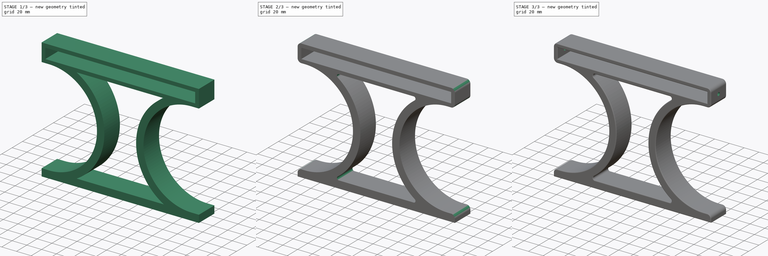
[diagram: build sequence overview — one tinted view per stage of 3, left to right]
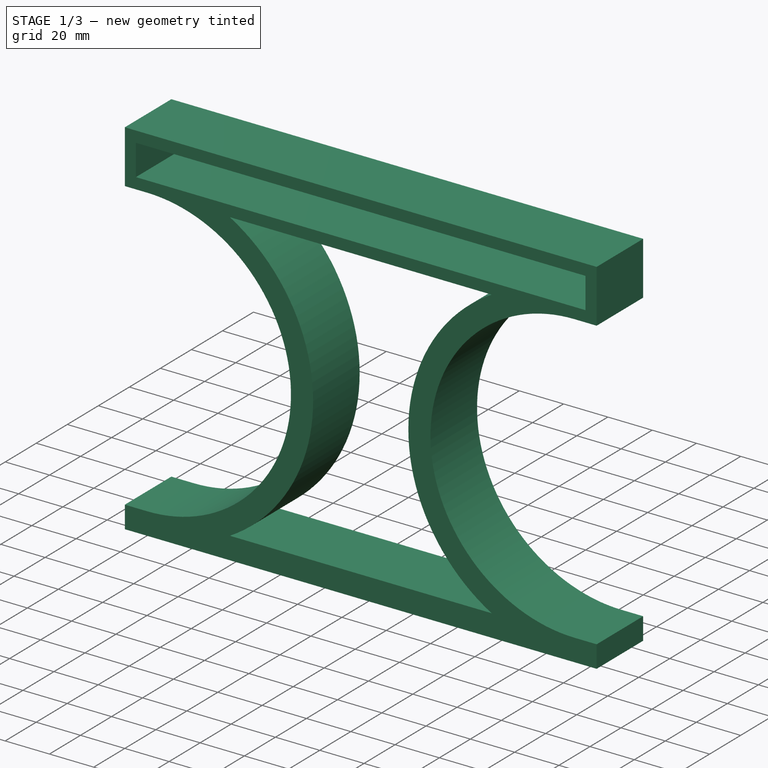
[diagram: stage 1 of 3 — iso view after this stage's code; geometry added in this stage tinted green]
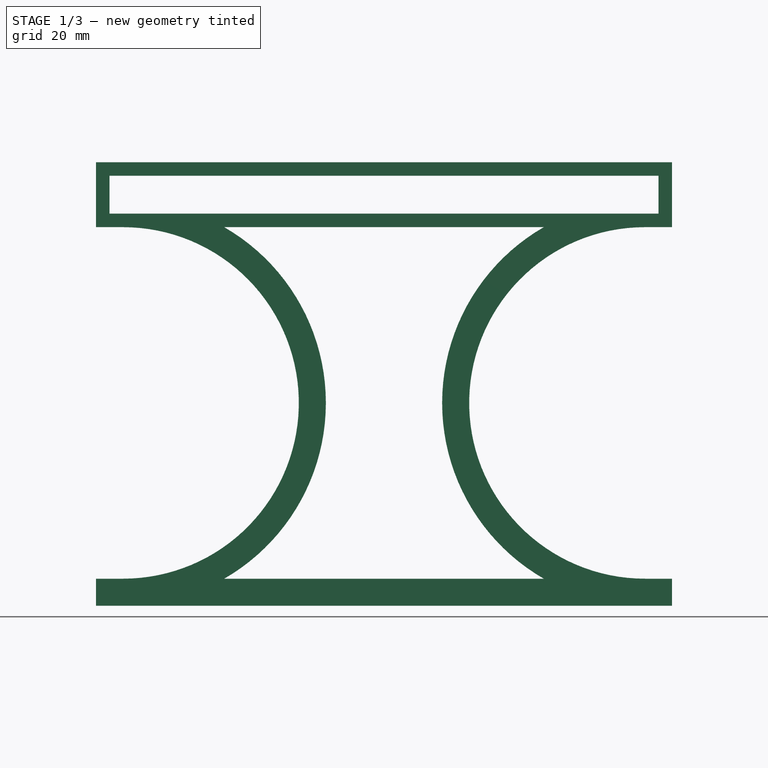
[diagram: stage 1 of 3 — front view after this stage's code; geometry added in this stage tinted green]
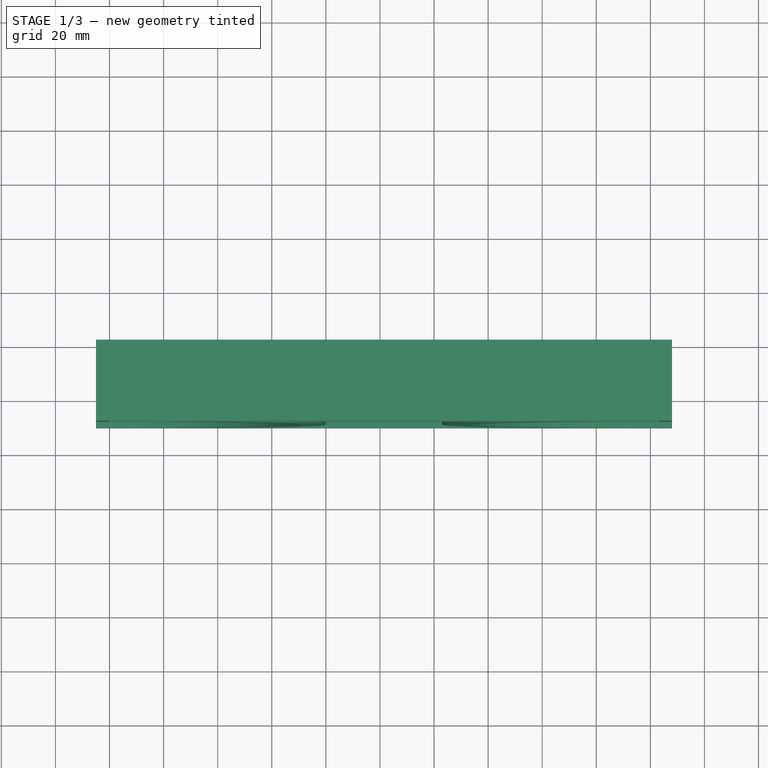
[diagram: stage 1 of 3 — top view after this stage's code; geometry added in this stage tinted green]
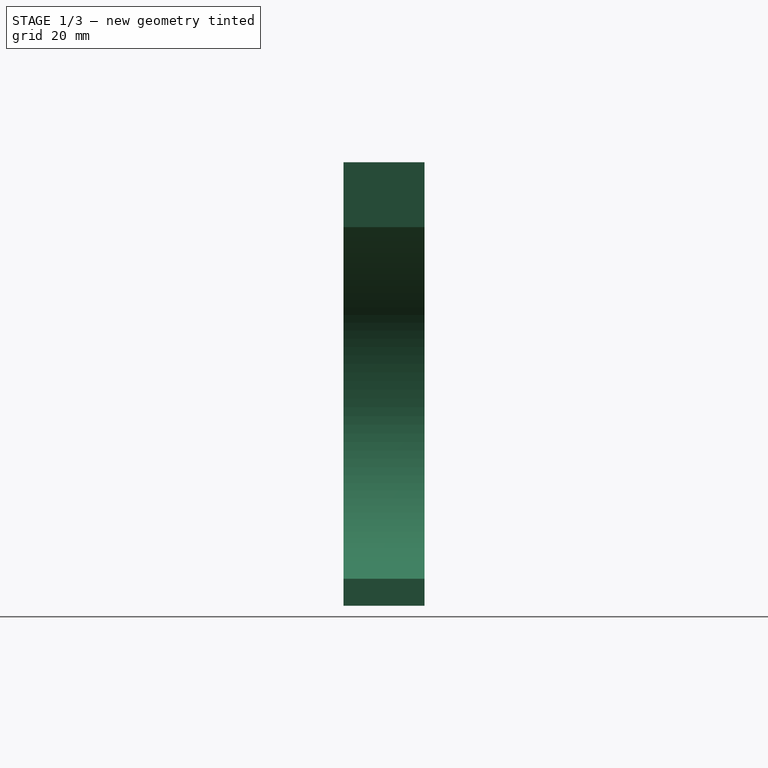
[diagram: stage 1 of 3 — right view after this stage's code; geometry added in this stage tinted green]
FCSTD DOCUMENT  (FreeCAD 0.20R29177 +426 (Git))
Label: Leg
License: All rights reserved
LicenseURL: http://en.wikipedia.org/wiki/All_rights_reserved
objects: Sketcher::SketchObject×4, PartDesign::Pad×3, PartDesign::Fillet×2, PartDesign::Pocket×1, PartDesign::Body×1
note: 17 computed .brp shape members not serialized (recipe doc carries the construction recipe); baked Part::Feature solids carry a one-line shape summary decoded from their .brp

FEATURE [Sketcher::SketchObject] Sketch
  FullyConstrained = true
  MapMode = 5
  Placement = pos=(0,0,0) rot=(1,0,0;1.5708rad)
  Support = -> [XZ_Plane]
  sketch-geometry (16):
    g0: LineSegment StartX=0 StartY=0 StartZ=0 EndX=203 EndY=0 EndZ=0
    g1: LineSegment StartX=203 StartY=0 StartZ=0 EndX=203 EndY=14 EndZ=0
    g2: LineSegment StartX=203 StartY=14 StartZ=0 EndX=0 EndY=14 EndZ=0
    g3: LineSegment StartX=0 StartY=14 StartZ=0 EndX=0 EndY=0 EndZ=0
    g4: LineSegment StartX=-5 StartY=19 StartZ=0 EndX=208 EndY=19 EndZ=0
    g5: LineSegment StartX=208 StartY=19 StartZ=0 EndX=208 EndY=-5 EndZ=0
    g6: LineSegment StartX=208 StartY=-5 StartZ=0 EndX=-5 EndY=-5 EndZ=0
    g7: LineSegment StartX=-5 StartY=-5 StartZ=0 EndX=-5 EndY=19 EndZ=0
    g8: LineSegment StartX=208 StartY=19 StartZ=0 EndX=203 EndY=19 EndZ=0
    g9: LineSegment StartX=203 StartY=19 StartZ=0 EndX=203 EndY=14 EndZ=0
    g10: LineSegment StartX=203 StartY=14 StartZ=0 EndX=208 EndY=14 EndZ=0
    g11: LineSegment StartX=208 StartY=14 StartZ=0 EndX=208 EndY=19 EndZ=0
    g12: LineSegment StartX=-5 StartY=-5 StartZ=0 EndX=0 EndY=-5 EndZ=0
    g13: LineSegment StartX=0 StartY=-5 StartZ=0 EndX=0 EndY=0 EndZ=0
    g14: LineSegment StartX=0 StartY=0 StartZ=0 EndX=-5 EndY=0 EndZ=0
    g15: LineSegment StartX=-5 StartY=0 StartZ=0 EndX=-5 EndY=-5 EndZ=0
  constraints (43):
    c: Coincident(g0,g1)
    c: Coincident(g1,g2)
    c: Coincident(g2,g3)
    c: Coincident(g3,g0)
    c: Horizontal(g0)
    c: Horizontal(g2)
    c: Vertical(g1)
    c: Vertical(g3)
    c: Coincident(g0,g-1)
    c: DistanceX(g0,g0) = 203
    c: DistanceY(g1,g1) = 14
    c: Coincident(g4,g5)
    c: Coincident(g5,g6)
    c: Coincident(g6,g7)
    c: Coincident(g7,g4)
    c: Horizontal(g4)
    c: Horizontal(g6)
    c: Vertical(g5)
    c: Vertical(g7)
    c: Coincident(g8,g9)
    c: Coincident(g9,g10)
    c: Coincident(g10,g11)
    c: Coincident(g11,g8)
    c: Horizontal(g8)
    c: Horizontal(g10)
    c: Vertical(g9)
    c: Vertical(g11)
    c: Coincident(g8,g4)
    c: Coincident(g9,g1)
    c: Coincident(g12,g13)
    c: Coincident(g13,g14)
    c: Coincident(g14,g15)
    c: Coincident(g15,g12)
    c: Horizontal(g12)
    c: Horizontal(g14)
    c: Vertical(g13)
    c: Vertical(g15)
    c: Coincident(g12,g6)
    c: Coincident(g13,g0)
    c: Equal(g14,g13)
    c: Equal(g13,g10)
    c: Equal(g10,g9)
    c: Distance(g10) = 5
FEATURE [PartDesign::Pad] Pad
  Direction = (0,-1,2e-16)
  Length = 30
  Length2 = 10
  Placement = pos=(0,0,0) rot=(1,0,0;1.5708rad)
  Profile = -> Sketch
  ReferenceAxis = -> Sketch [N_Axis]
  Type = 0
FEATURE [Sketcher::SketchObject] Sketch001
  ExternalGeometry = -> [Pad]
  FullyConstrained = true
  MapMode = 5
  Placement = pos=(0,-30,6.7e-15) rot=(1,0,0;1.5708rad)
  Support = -> [Pad]
  sketch-geometry (20):
    g0: LineSegment StartX=-5 StartY=-5 StartZ=0 EndX=208 EndY=-5 EndZ=0
    g1: LineSegment StartX=-5 StartY=-5 StartZ=0 EndX=-5 EndY=-145 EndZ=0
    g2: LineSegment StartX=208 StartY=-5 StartZ=0 EndX=208 EndY=-145 EndZ=0
    g3: LineSegment StartX=208 StartY=-145 StartZ=0 EndX=-5 EndY=-145 EndZ=0
    g4: LineSegment StartX=-5 StartY=-145 StartZ=0 EndX=-5 EndY=-135 EndZ=0
    g5: LineSegment StartX=-5 StartY=-135 StartZ=0 EndX=208 EndY=-135 EndZ=0
    g6: LineSegment StartX=208 StartY=-135 StartZ=0 EndX=208 EndY=-145 EndZ=0
    g7: ArcOfCircle CenterX=5 CenterY=-70 CenterZ=0 NormalX=0 NormalY=0 NormalZ=1 AngleXU=0 Radius=65 StartAngle=4.71239 EndAngle=7.85398
    g8: LineSegment StartX=5 StartY=-135 StartZ=0 EndX=-5 EndY=-135 EndZ=0
    g9: ArcOfCircle CenterX=5 CenterY=-70 CenterZ=0 NormalX=0 NormalY=0 NormalZ=1 AngleXU=0 Radius=75 StartAngle=5.2347 EndAngle=7.33167
    g10: LineSegment StartX=5 StartY=-5 StartZ=0 EndX=42.4166 EndY=-5 EndZ=0
    g11: ArcOfCircle CenterX=198 CenterY=-70 CenterZ=0 NormalX=0 NormalY=0 NormalZ=1 AngleXU=0 Radius=65 StartAngle=1.5708 EndAngle=4.71239
    g12: LineSegment StartX=198 StartY=-135 StartZ=0 EndX=208 EndY=-135 EndZ=0
    g13: LineSegment StartX=198 StartY=-5 StartZ=0 EndX=160.583 EndY=-5 EndZ=0
    g14: ArcOfCircle CenterX=198 CenterY=-70 CenterZ=0 NormalX=0 NormalY=0 NormalZ=1 AngleXU=0 Radius=75 StartAngle=2.09311 EndAngle=4.19007
    g15: LineSegment StartX=42.4166 StartY=-135 StartZ=0 EndX=160.583 EndY=-135 EndZ=0
    g16: LineSegment StartX=160.583 StartY=-135 StartZ=0 EndX=165.572 EndY=-126.333 EndZ=0
    g17: LineSegment StartX=160.583 StartY=-5 StartZ=0 EndX=165.572 EndY=-13.6667 EndZ=0
    g18: LineSegment StartX=42.4166 StartY=-5 StartZ=0 EndX=37.4277 EndY=-13.6667 EndZ=0
    g19: LineSegment StartX=42.4166 StartY=-135 StartZ=0 EndX=37.4277 EndY=-126.333 EndZ=0
  constraints (56):
    c: Coincident(g0,g-3)
    c: Coincident(g0,g-3)
    c: Coincident(g1,g0)
    c: Vertical(g1)
    c: Distance(g1) = 140
    c: Coincident(g2,g0)
    c: Vertical(g2)
    c: Coincident(g3,g4)
    c: Coincident(g4,g5)
    c: Coincident(g5,g6)
    c: Coincident(g6,g3)
    c: Horizontal(g3)
    c: Horizontal(g5)
    c: Vertical(g4)
    c: Vertical(g6)
    c: Coincident(g3,g1)
    c: Coincident(g2,g3)
    c: DistanceY(g6,g6) = 10
    c: Tangent(g7,g0) = 1.5708
    c: Tangent(g7,g5) = -1.5708
    c: Coincident(g8,g7)
    c: Coincident(g8,g4)
    c: Distance(g8) = 10
    c: Coincident(g10,g7)
    c: Coincident(g10,g9)
    c: Horizontal(g10)
    c: PointOnObject(g11,g0)
    c: PointOnObject(g11,g5)
    c: Coincident(g12,g6)
    c: Equal(g8,g12)
    c: Tangent(g12,g11) = -1.5708
    c: PointOnObject(g13,g0)
    c: Equal(g10,g13)
    c: Tangent(g13,g11) = -1.5708
    c: Coincident(g15,g9)
    c: Horizontal(g15)
    c: PointOnObject(g9,g5)
    c: Coincident(g14,g13)
    c: Coincident(g15,g14)
    c: Coincident(g16,g14)
    c: PointOnObject(g16,g11)
    c: Coincident(g17,g13)
    c: PointOnObject(g17,g11)
    c: Coincident(g18,g9)
    c: PointOnObject(g18,g7)
    c: Coincident(g19,g9)
    c: PointOnObject(g19,g7)
    c: Perpendicular(g7,g18)
    c: Perpendicular(g7,g19)
    c: Perpendicular(g9,g19)
    c: Perpendicular(g9,g18)
    c: Distance(g18) = 10
    c: Perpendicular(g14,g17)
    c: Perpendicular(g11,g17)
    c: Perpendicular(g11,g16)
    c: Perpendicular(g14,g16)
FEATURE [PartDesign::Pad] Pad001
  BaseFeature = -> Pad
  Direction = (0,-1,2e-16)
  Length = 10
  Length2 = 10
  Placement = pos=(0,0,0) rot=(1,0,0;1.5708rad)
  Profile = -> Sketch001
  ReferenceAxis = -> Sketch001 [N_Axis]
  Refine = true
  Reversed = true
  Type = 3
  UpToFace = -> Pad [Face9]
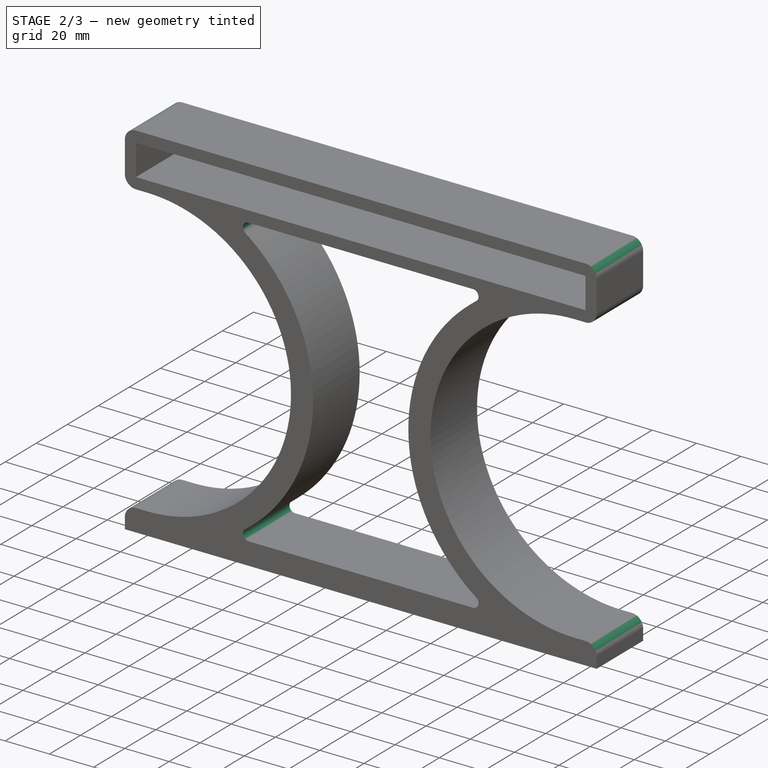
[diagram: stage 2 of 3 — iso view after this stage's code; geometry added in this stage tinted green]
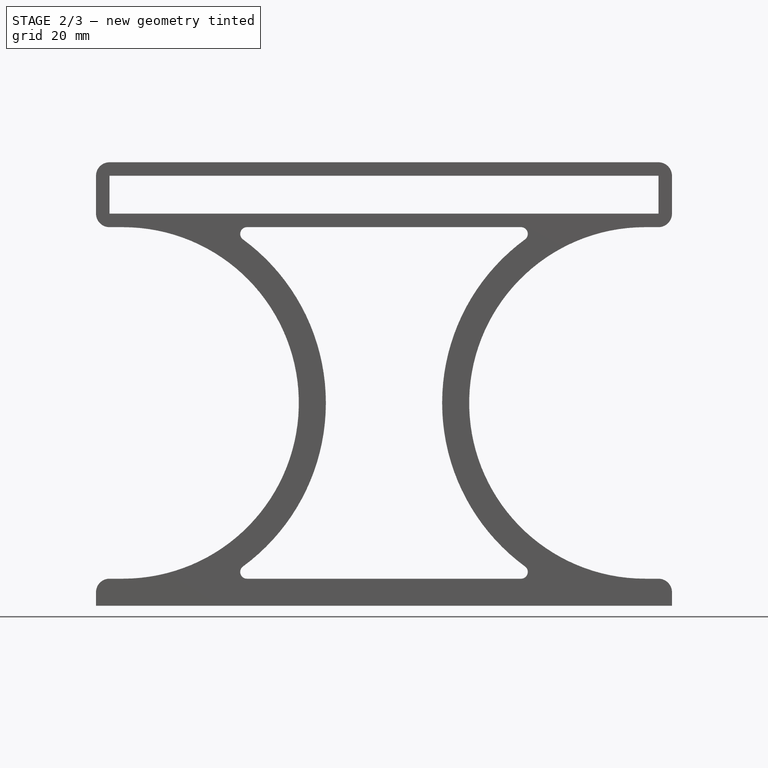
[diagram: stage 2 of 3 — front view after this stage's code; geometry added in this stage tinted green]
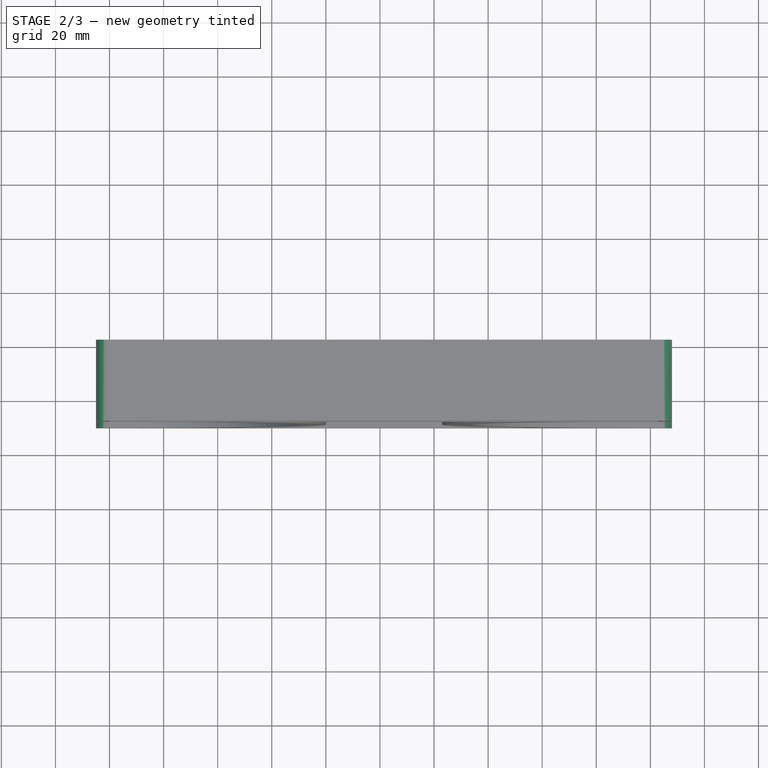
[diagram: stage 2 of 3 — top view after this stage's code; geometry added in this stage tinted green]
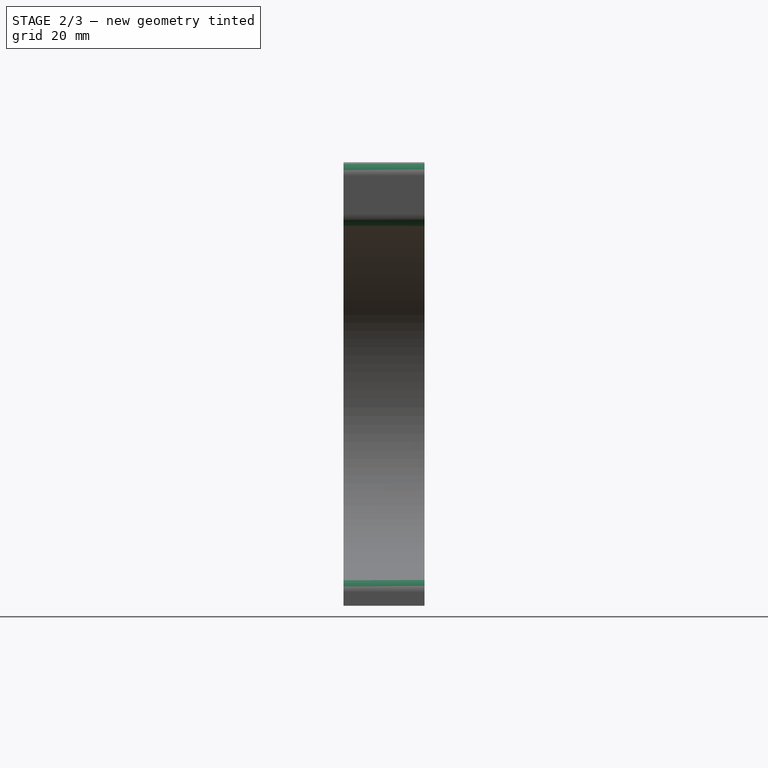
[diagram: stage 2 of 3 — right view after this stage's code; geometry added in this stage tinted green]
FEATURE [Sketcher::SketchObject] Sketch002
  ExternalGeometry = -> [Pad001]
  FullyConstrained = true
  MapMode = 5
  Placement = pos=(0,-3e-16,0) rot=(-1,0,0;1.5708rad)
  Support = -> [Pad001]
  sketch-geometry (14):
    g0: ArcOfCircle CenterX=50.8258 CenterY=7.5 CenterZ=0 NormalX=0 NormalY=0 NormalZ=1 AngleXU=0 Radius=2.5 StartAngle=2.20347 EndAngle=4.71239
    g1: ArcOfCircle CenterX=50.8258 CenterY=132.5 CenterZ=0 NormalX=0 NormalY=0 NormalZ=1 AngleXU=0 Radius=2.5 StartAngle=1.5708 EndAngle=4.07972
    g2: ArcOfCircle CenterX=152.174 CenterY=132.5 CenterZ=0 NormalX=0 NormalY=0 NormalZ=1 AngleXU=0 Radius=2.5 StartAngle=5.34506 EndAngle=7.85398
    g3: ArcOfCircle CenterX=152.174 CenterY=7.5 CenterZ=0 NormalX=0 NormalY=0 NormalZ=1 AngleXU=0 Radius=2.5 StartAngle=4.71239 EndAngle=7.22131
    g4: ArcOfCircle CenterX=5 CenterY=70 CenterZ=0 NormalX=0 NormalY=0 NormalZ=1 AngleXU=0 Radius=75 StartAngle=5.34506 EndAngle=7.22131
    g5: ArcOfCircle CenterX=198 CenterY=70 CenterZ=0 NormalX=0 NormalY=0 NormalZ=1 AngleXU=0 Radius=75 StartAngle=2.20347 EndAngle=4.07972
    g6: LineSegment StartX=50.8258 StartY=135 StartZ=0 EndX=42.4166 EndY=135 EndZ=0
    g7: LineSegment StartX=152.174 StartY=135 StartZ=0 EndX=160.583 EndY=135 EndZ=0
    g8: LineSegment StartX=152.174 StartY=5 StartZ=0 EndX=160.583 EndY=5 EndZ=0
    g9: LineSegment StartX=50.8258 StartY=5 StartZ=0 EndX=42.4166 EndY=5 EndZ=0
    g10: ArcOfCircle CenterX=5 CenterY=70 CenterZ=0 NormalX=0 NormalY=0 NormalZ=1 AngleXU=0 Radius=75 StartAngle=0.938126 EndAngle=1.04848
    g11: ArcOfCircle CenterX=198 CenterY=70 CenterZ=0 NormalX=0 NormalY=0 NormalZ=1 AngleXU=0 Radius=75 StartAngle=4.07972 EndAngle=4.19007
    g12: ArcOfCircle CenterX=5 CenterY=70 CenterZ=0 NormalX=0 NormalY=0 NormalZ=1 AngleXU=0 Radius=75 StartAngle=5.2347 EndAngle=5.34506
    g13: ArcOfCircle CenterX=198 CenterY=70 CenterZ=0 NormalX=0 NormalY=0 NormalZ=1 AngleXU=0 Radius=75 StartAngle=2.09311 EndAngle=2.20347
  constraints (36):
    c: PointOnObject(g0,g-3)
    c: PointOnObject(g2,g-4)
    c: Coincident(g4,g-3)
    c: Coincident(g5,g-4)
    c: Equal(g1,g2)
    c: Equal(g2,g3)
    c: Equal(g3,g0)
    c: Tangent(g4,g0) = 1.5708
    c: Tangent(g4,g1) = 1.5708
    c: Tangent(g1,g-5) = 1.5708
    c: Tangent(g2,g-5) = 1.5708
    c: Tangent(g5,g2) = 1.5708
    c: Tangent(g5,g3) = 1.5708
    c: Tangent(g3,g-6) = 1.5708
    c: Tangent(g0,g-6) = 1.5708
    c: Diameter(g2) = 5
    c: Coincident(g6,g1)
    c: Coincident(g-5,g6)
    c: Coincident(g7,g2)
    c: Coincident(g8,g3)
    c: Coincident(g9,g0)
    c: Coincident(g-6,g9)
    c: Coincident(g-6,g8)
    c: Coincident(g7,g-5)
    c: Coincident(g10,g6)
    c: Coincident(g10,g1)
    c: Coincident(g11,g3)
    c: Coincident(g11,g8)
    c: Coincident(g12,g9)
    c: Coincident(g12,g0)
    c: Equal(g-3,g12)
    c: Equal(g-3,g10)
    c: Equal(g11,g-4)
    c: Coincident(g13,g2)
    c: Coincident(g13,g7)
    c: Equal(g-4,g13)
FEATURE [PartDesign::Pad] Pad002
  BaseFeature = -> Pad001
  Direction = (0,1,-2e-16)
  Length = 10
  Length2 = 10
  Placement = pos=(0,0,0) rot=(1,0,0;1.5708rad)
  Profile = -> Sketch002
  ReferenceAxis = -> Sketch002 [N_Axis]
  Refine = true
  Reversed = true
  Type = 3
  UpToFace = -> Pad001 [Face22]
FEATURE [PartDesign::Fillet] Fillet
  Base = -> Pad002 [Edge30,Edge21,Edge8,Edge2,Edge1,Edge5]
  BaseFeature = -> Pad002
  Placement = pos=(0,0,0) rot=(1,0,0;1.5708rad)
  Radius = 5
  SupportTransform = false
  UseAllEdges = false
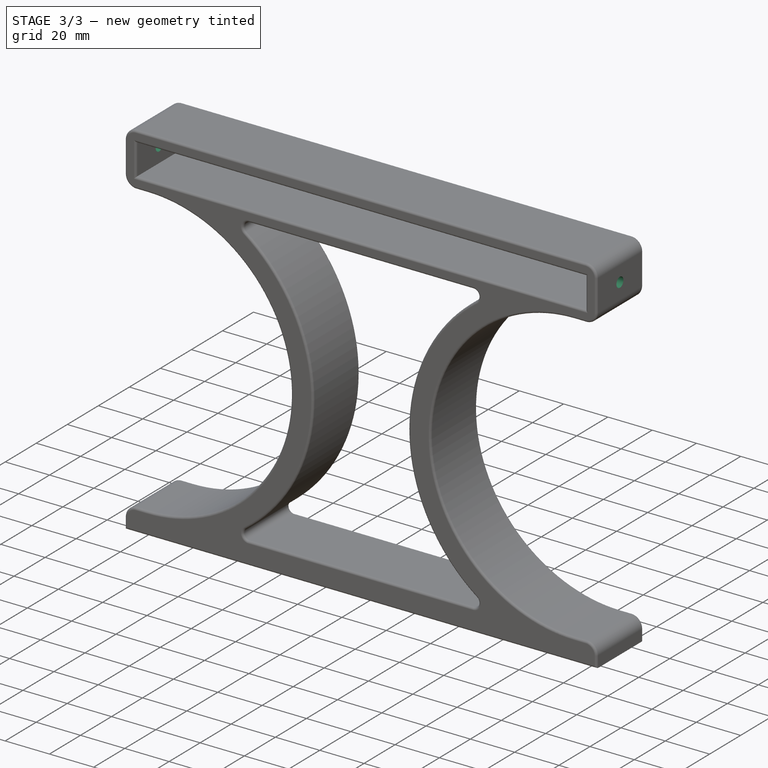
[diagram: stage 3 of 3 — iso view after this stage's code; geometry added in this stage tinted green]
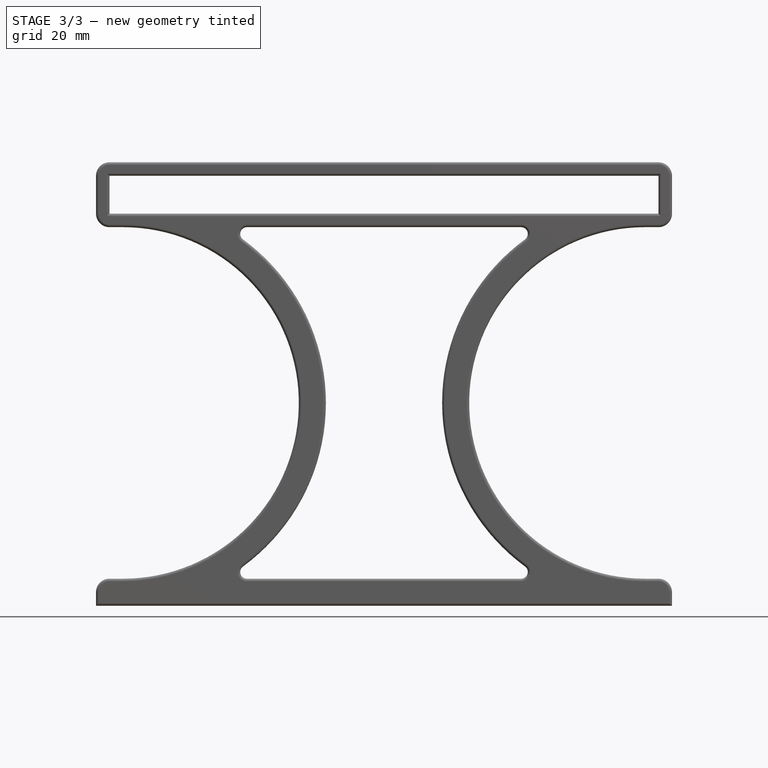
[diagram: stage 3 of 3 — front view after this stage's code; geometry added in this stage tinted green]
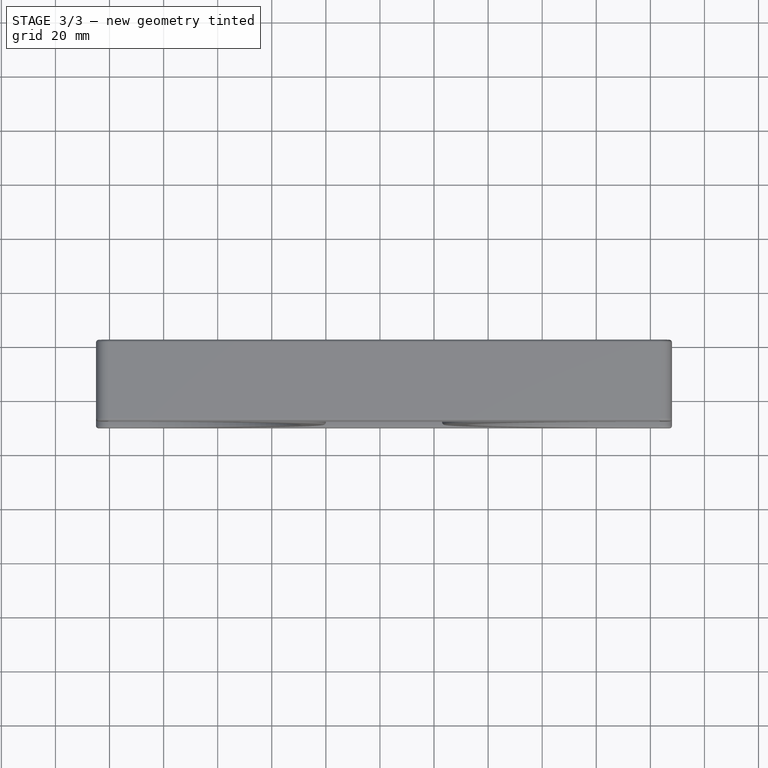
[diagram: stage 3 of 3 — top view after this stage's code; geometry added in this stage tinted green]
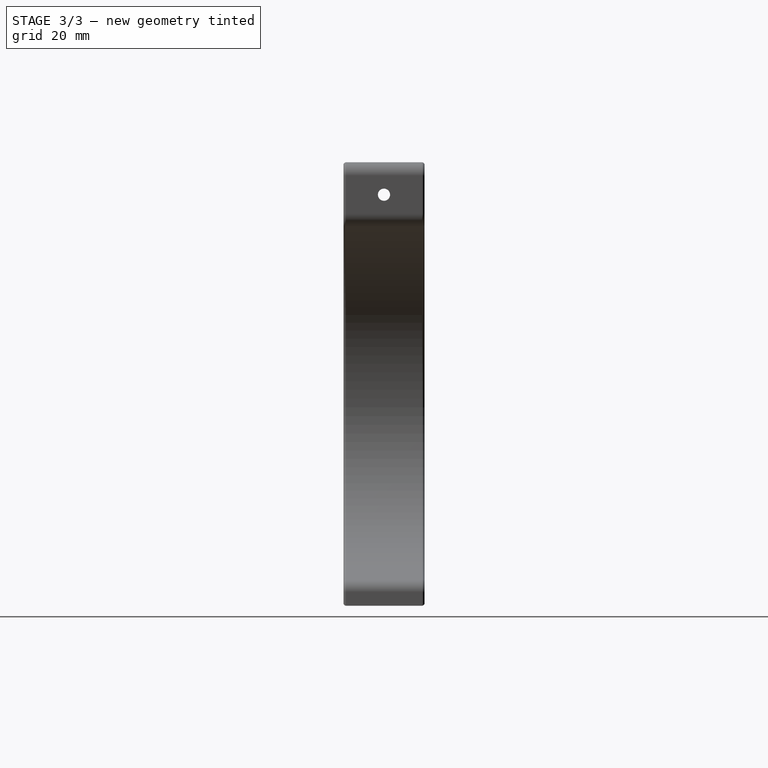
[diagram: stage 3 of 3 — right view after this stage's code; geometry added in this stage tinted green]
FEATURE [Sketcher::SketchObject] Sketch003
  ExternalGeometry = -> [Fillet]
  FullyConstrained = true
  MapMode = 5
  Placement = pos=(208,0,0) rot=(0.707107,0,0.707107;3.14159rad)
  Support = -> [Fillet]
  sketch-geometry (1):
    g0: Circle CenterX=7 CenterY=15 CenterZ=0 NormalX=0 NormalY=0 NormalZ=1 AngleXU=0 Radius=2.25
  constraints (2):
    c: Symmetric(g-3,g-4,g0)
    c: Diameter(g0) = 4.5
FEATURE [PartDesign::Pocket] Pocket
  BaseFeature = -> Fillet
  Direction = (-1,0,2e-16)
  Length = 300
  Length2 = 5
  Placement = pos=(0,0,0) rot=(1,0,0;1.5708rad)
  Profile = -> Sketch003
  ReferenceAxis = -> Sketch003 [N_Axis]
  Type = 0
FEATURE [PartDesign::Fillet] Fillet001
  Base = -> Pocket [Face2,Face5]
  BaseFeature = -> Pocket
  Placement = pos=(0,0,0) rot=(1,0,0;1.5708rad)
  Radius = 1
  SupportTransform = false
  UseAllEdges = false
FEATURE [PartDesign::Body] Body
  Group = -> [Sketch,Pad,Sketch001,Pad001,Sketch002,Pad002,Fillet,Sketch003,Pocket,Fillet001]
  Origin = -> Origin
  Tip = -> Fillet001
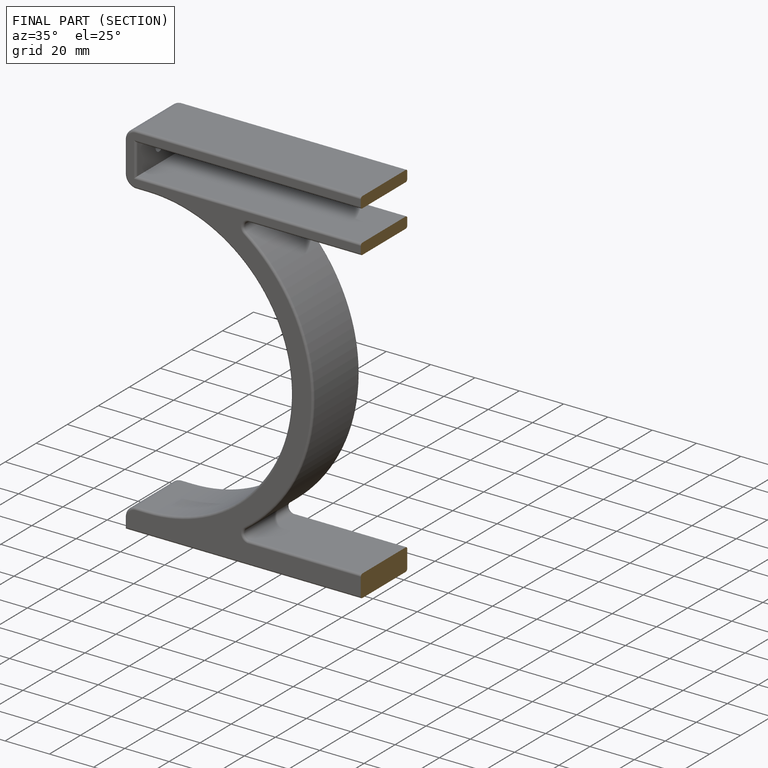
[diagram: finished part — half-section view (interior)]
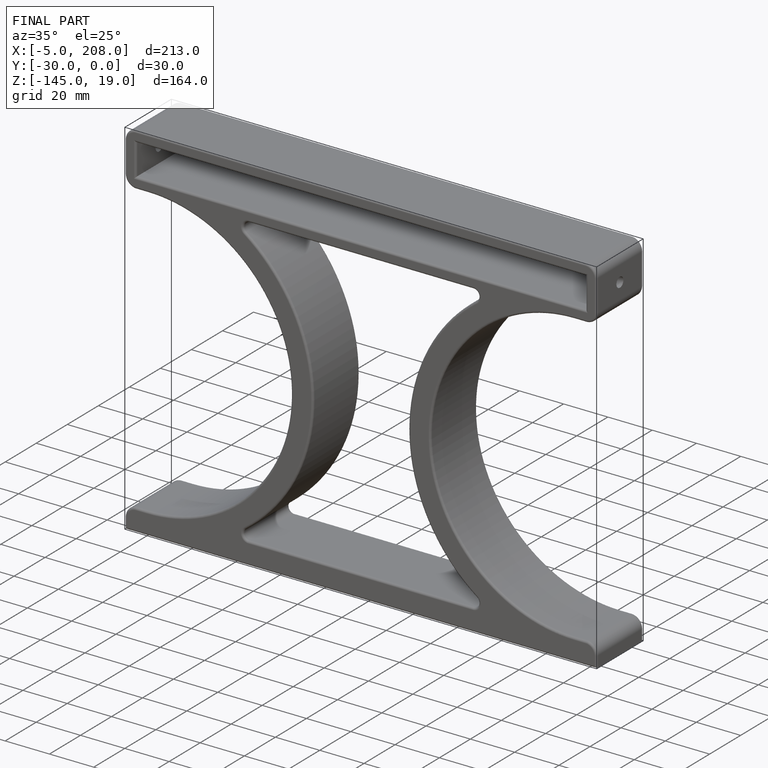
[diagram: finished part — iso view with bounding-box wireframe]
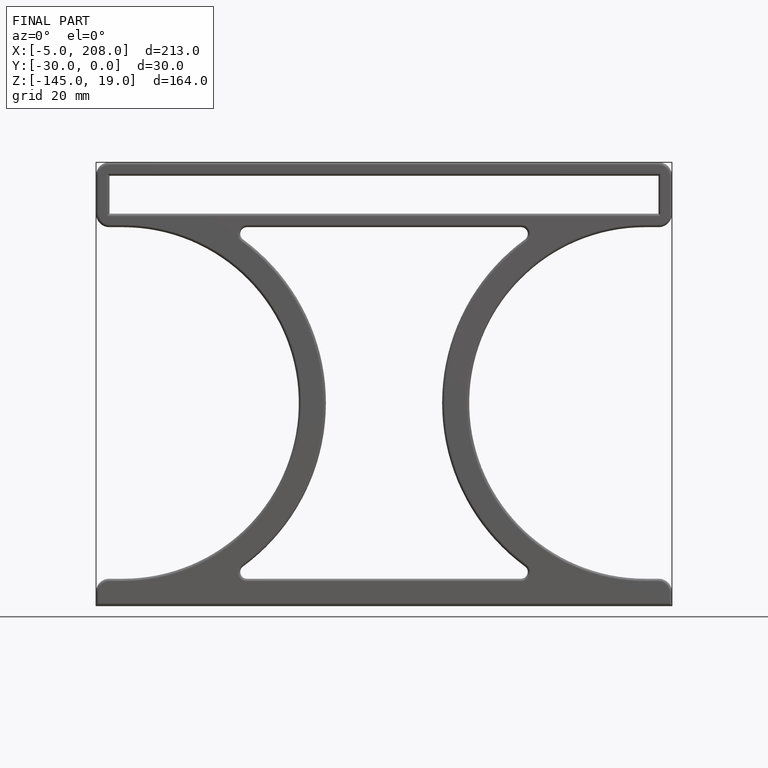
[diagram: finished part — front view with bounding-box wireframe]
